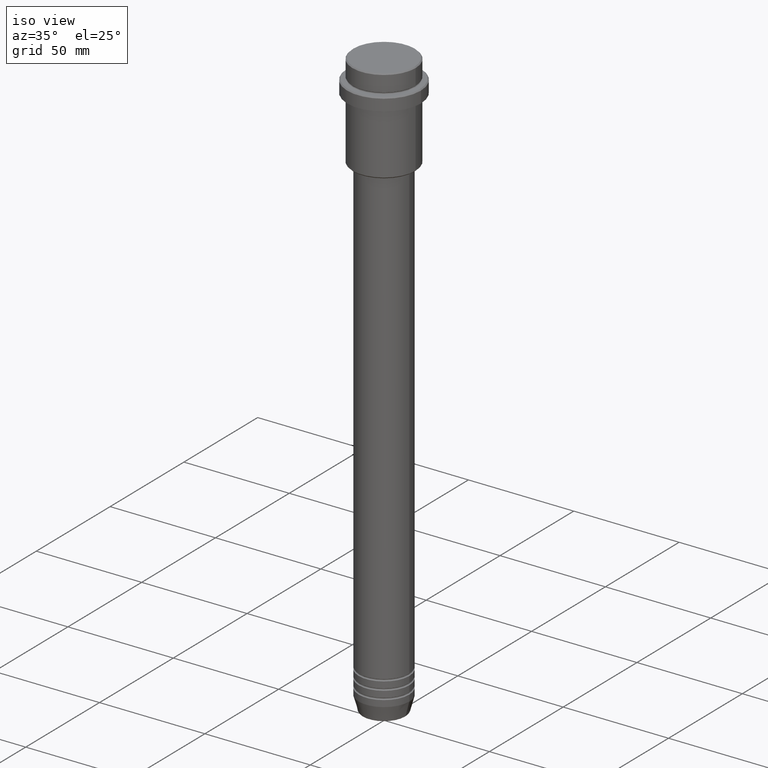
[diagram: clean part render]
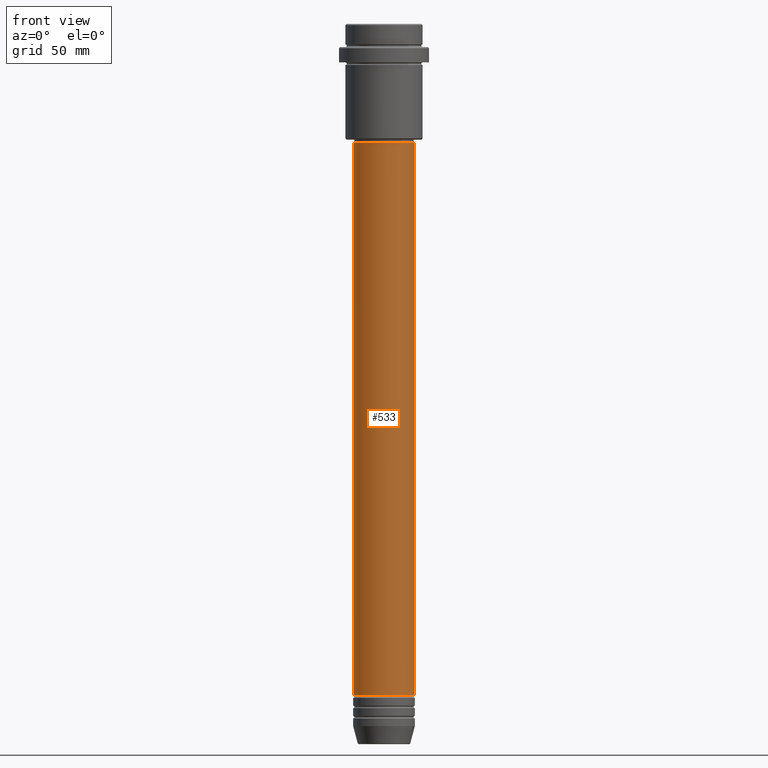
[diagram: tour spotlight — one face highlighted and labeled with its STEP entity id]
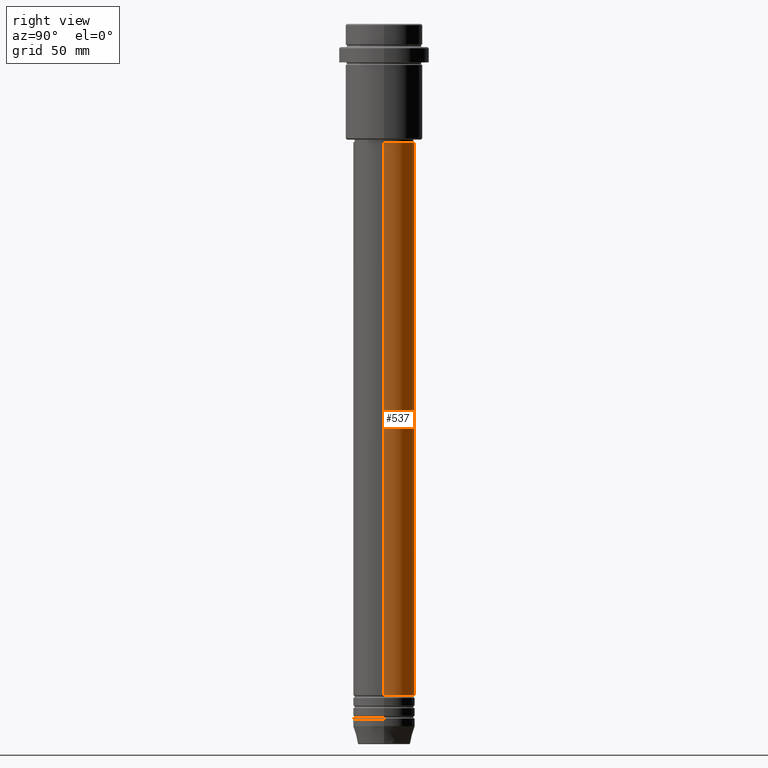
[diagram: tour spotlight — one face highlighted and labeled with its STEP entity id]
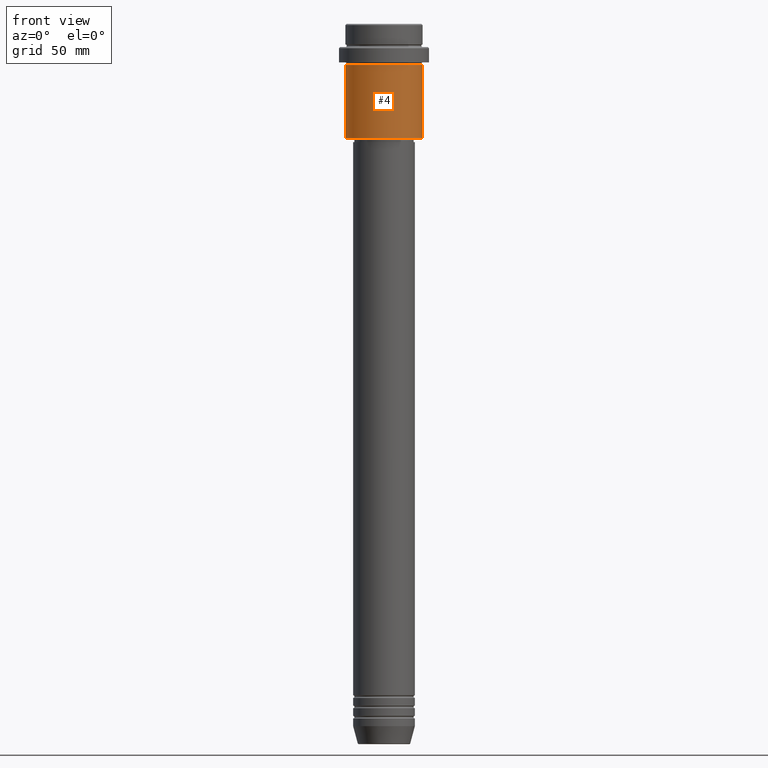
[diagram: tour spotlight — one face highlighted and labeled with its STEP entity id]
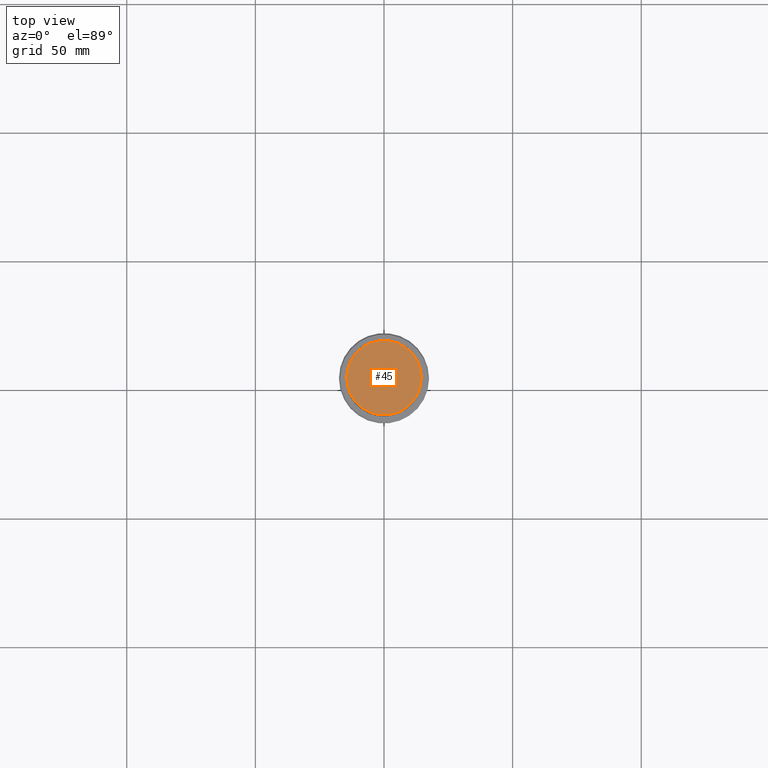
[diagram: tour spotlight — one face highlighted and labeled with its STEP entity id]
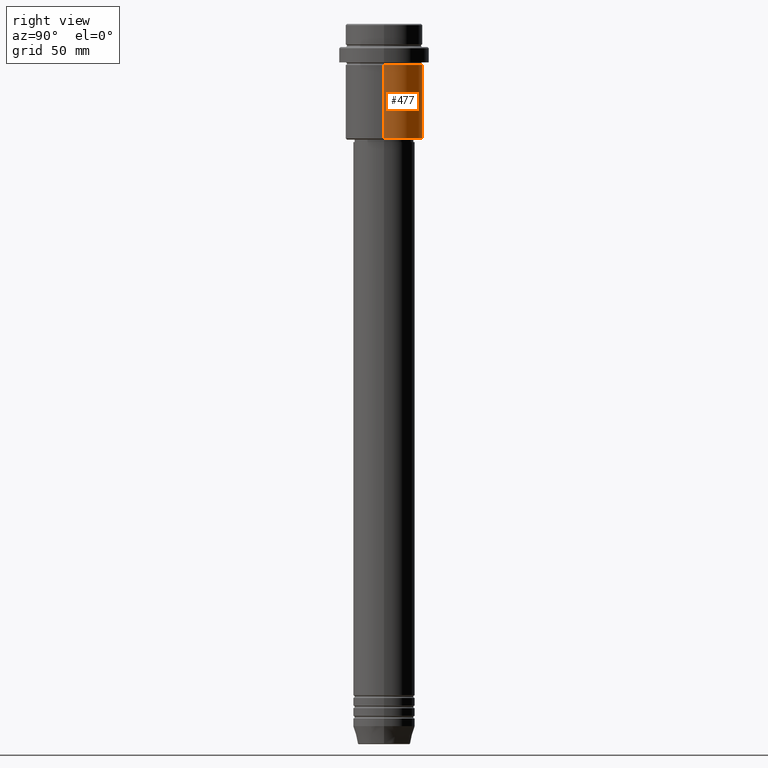
[diagram: tour spotlight — one face highlighted and labeled with its STEP entity id]
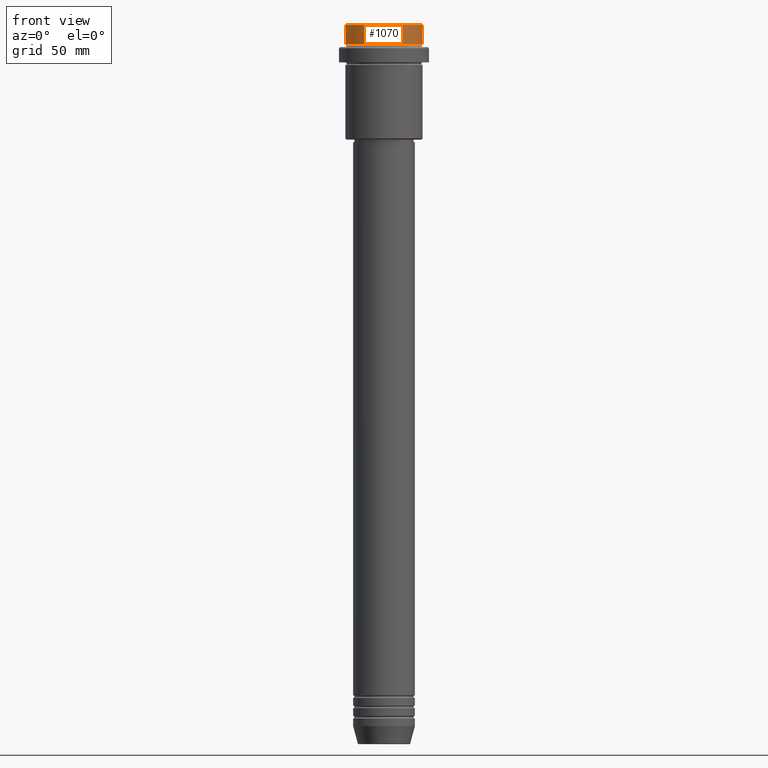
[diagram: tour spotlight — one face highlighted and labeled with its STEP entity id]
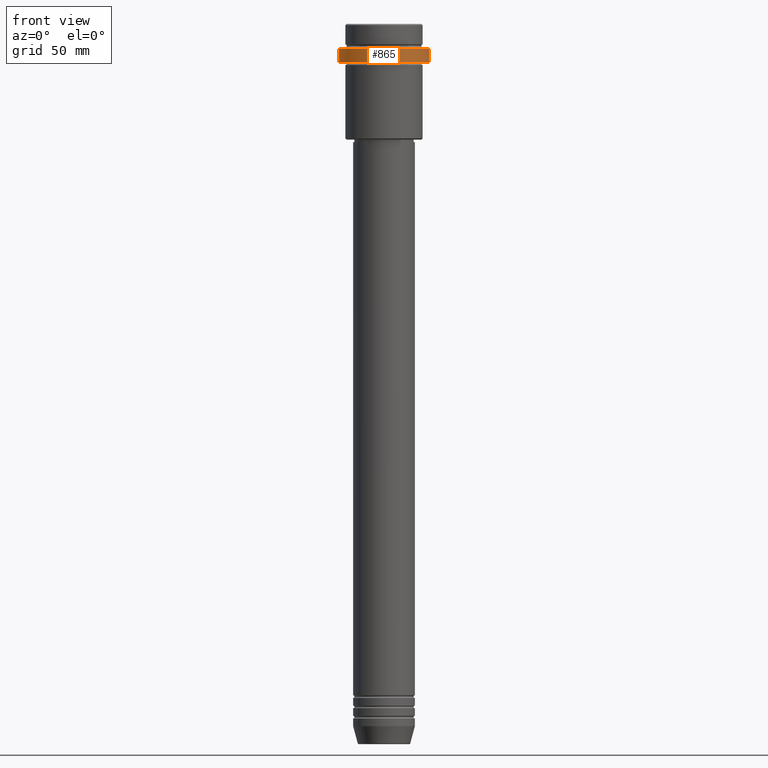
[diagram: tour spotlight — one face highlighted and labeled with its STEP entity id]
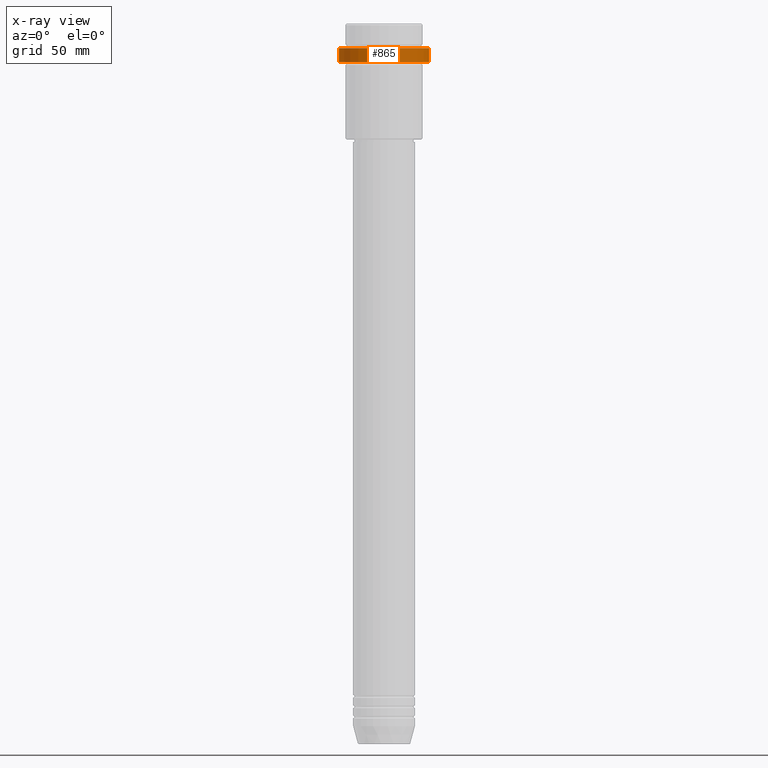
[diagram: x-ray of the same camera — body ghosted, this tour face saturated]
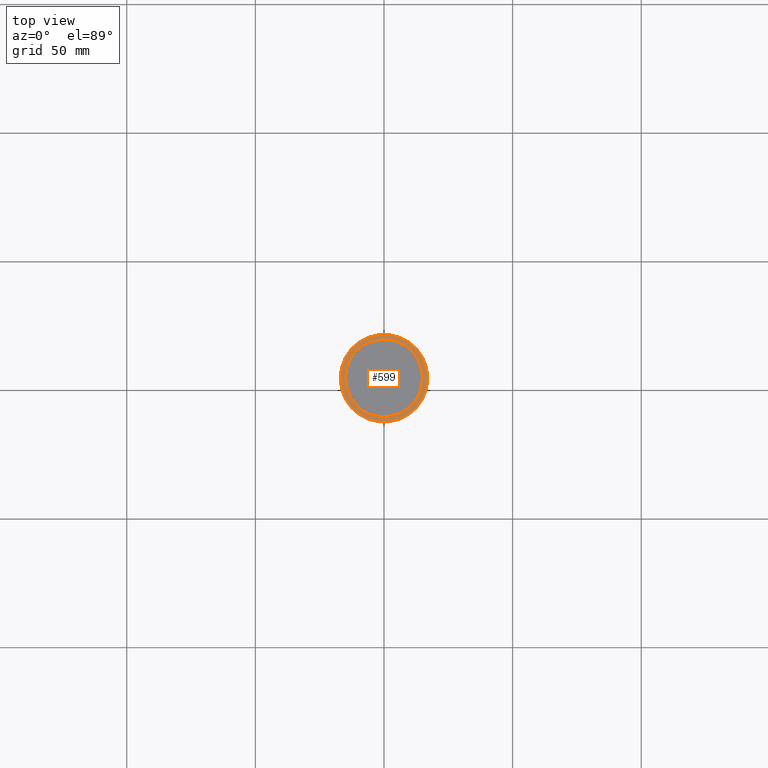
[diagram: tour spotlight — one face highlighted and labeled with its STEP entity id]
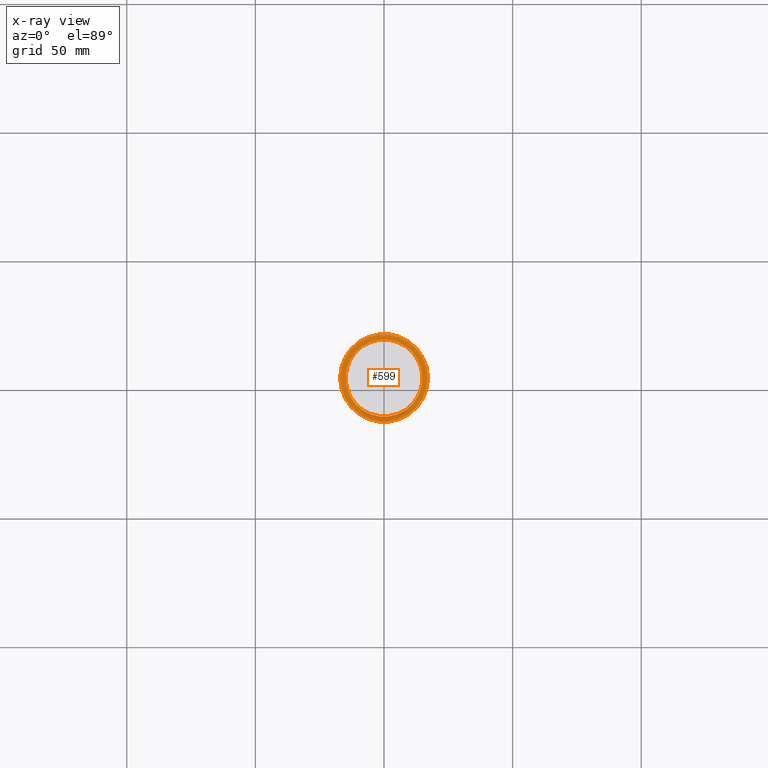
[diagram: x-ray of the same camera — body ghosted, this tour face saturated]
A machine part: a face-by-face anatomy tour. The part has 52 B-rep faces; the first image is the clean iso view, then the 8 largest visible faces are spotlighted one at a time (largest first), each with its STEP entity span.

Face 1 — front view, entity #533. In plain terms, the highlighted cylindrical surface (edge-blend (fillet) strip) has radius 12 mm, axis along (-0, -0, 1).
Definition (entity closure, byte-faithful):
#28 = VERTEX_POINT ( 'NONE', #384 ) ;
#74 = DIRECTION ( 'NONE',  ( -0.000000000000000000, -0.000000000000000000, 1.000000000000000000 ) ) ;
#91 = VERTEX_POINT ( 'NONE', #1356 ) ;
#116 = CARTESIAN_POINT ( 'NONE',  ( 0.000000000000000000, 0.000000000000000000, -46.00000000000002132 ) ) ;
#152 = EDGE_CURVE ( 'NONE', #28, #91, #278, .T. ) ;
#191 = DIRECTION ( 'NONE',  ( -0.000000000000000000, -0.000000000000000000, 1.000000000000000000 ) ) ;
#194 = VECTOR ( 'NONE', #942, 1000.000000000000000 ) ;
#203 = AXIS2_PLACEMENT_3D ( 'NONE', #205, #1413, #1196 ) ;
#205 = CARTESIAN_POINT ( 'NONE',  ( 0.000000000000000000, 0.000000000000000000, -260.9999999999998863 ) ) ;
#278 = LINE ( 'NONE', #394, #194 ) ;
#298 = CARTESIAN_POINT ( 'NONE',  ( 12.00000000000000000, 0.000000000000000000, -260.9999999999998863 ) ) ;
#314 = CIRCLE ( 'NONE', #203, 12.00000000000000000 ) ;
#384 = CARTESIAN_POINT ( 'NONE',  ( -12.00000000000000000, 1.469576158976823947E-15, -260.9999999999998863 ) ) ;
#394 = CARTESIAN_POINT ( 'NONE',  ( -12.00000000000000000, 1.469576158976823947E-15, 0.000000000000000000 ) ) ;
#442 = ORIENTED_EDGE ( 'NONE', *, *, #1053, .T. ) ;
#443 = DIRECTION ( 'NONE',  ( 1.000000000000000000, 0.000000000000000000, 0.000000000000000000 ) ) ;
#451 = AXIS2_PLACEMENT_3D ( 'NONE', #505, #74, #1290 ) ;
#500 = FACE_OUTER_BOUND ( 'NONE', #849, .T. ) ;
#505 = CARTESIAN_POINT ( 'NONE',  ( 0.000000000000000000, 0.000000000000000000, 0.000000000000000000 ) ) ;
#521 = LINE ( 'NONE', #1373, #1088 ) ;
#533 = ADVANCED_FACE ( 'NONE', ( #500 ), #1047, .T. ) ;
#552 = DIRECTION ( 'NONE',  ( -0.000000000000000000, -0.000000000000000000, 1.000000000000000000 ) ) ;
#739 = ORIENTED_EDGE ( 'NONE', *, *, #1165, .F. ) ;
#743 = ORIENTED_EDGE ( 'NONE', *, *, #1343, .T. ) ;
#849 = EDGE_LOOP ( 'NONE', ( #1033, #442, #743, #739 ) ) ;
#942 = DIRECTION ( 'NONE',  ( -0.000000000000000000, -0.000000000000000000, 1.000000000000000000 ) ) ;
#1033 = ORIENTED_EDGE ( 'NONE', *, *, #152, .F. ) ;
#1047 = CYLINDRICAL_SURFACE ( 'NONE', #451, 12.00000000000000000 ) ;
#1053 = EDGE_CURVE ( 'NONE', #28, #1310, #314, .T. ) ;
#1063 = AXIS2_PLACEMENT_3D ( 'NONE', #116, #552, #443 ) ;
#1088 = VECTOR ( 'NONE', #191, 1000.000000000000000 ) ;
#1165 = EDGE_CURVE ( 'NONE', #91, #1349, #1324, .T. ) ;
#1196 = DIRECTION ( 'NONE',  ( 1.000000000000000000, 0.000000000000000000, 0.000000000000000000 ) ) ;
#1290 = DIRECTION ( 'NONE',  ( 1.000000000000000000, 0.000000000000000000, 0.000000000000000000 ) ) ;
#1310 = VERTEX_POINT ( 'NONE', #298 ) ;
#1324 = CIRCLE ( 'NONE', #1063, 11.99999999999999822 ) ;
#1343 = EDGE_CURVE ( 'NONE', #1310, #1349, #521, .T. ) ;
#1349 = VERTEX_POINT ( 'NONE', #1415 ) ;
#1356 = CARTESIAN_POINT ( 'NONE',  ( -11.99999999999999822, 1.469576158976823750E-15, -46.00000000000002132 ) ) ;
#1373 = CARTESIAN_POINT ( 'NONE',  ( 12.00000000000000000, 0.000000000000000000, 0.000000000000000000 ) ) ;
#1413 = DIRECTION ( 'NONE',  ( -0.000000000000000000, -0.000000000000000000, 1.000000000000000000 ) ) ;
#1415 = CARTESIAN_POINT ( 'NONE',  ( 11.99999999999999822, 0.000000000000000000, -46.00000000000002132 ) ) ;

Face 2 — right view, entity #537. In plain terms, the highlighted cylindrical surface (edge-blend (fillet) strip) has radius 12 mm, axis along (-0, -0, 1).
Definition (entity closure, byte-faithful):
#28 = VERTEX_POINT ( 'NONE', #384 ) ;
#86 = EDGE_CURVE ( 'NONE', #1310, #28, #653, .T. ) ;
#89 = CARTESIAN_POINT ( 'NONE',  ( 0.000000000000000000, 0.000000000000000000, 0.000000000000000000 ) ) ;
#91 = VERTEX_POINT ( 'NONE', #1356 ) ;
#143 = ORIENTED_EDGE ( 'NONE', *, *, #152, .T. ) ;
#152 = EDGE_CURVE ( 'NONE', #28, #91, #278, .T. ) ;
#191 = DIRECTION ( 'NONE',  ( -0.000000000000000000, -0.000000000000000000, 1.000000000000000000 ) ) ;
#194 = VECTOR ( 'NONE', #942, 1000.000000000000000 ) ;
#278 = LINE ( 'NONE', #394, #194 ) ;
#298 = CARTESIAN_POINT ( 'NONE',  ( 12.00000000000000000, 0.000000000000000000, -260.9999999999998863 ) ) ;
#299 = ORIENTED_EDGE ( 'NONE', *, *, #1117, .F. ) ;
#384 = CARTESIAN_POINT ( 'NONE',  ( -12.00000000000000000, 1.469576158976823947E-15, -260.9999999999998863 ) ) ;
#394 = CARTESIAN_POINT ( 'NONE',  ( -12.00000000000000000, 1.469576158976823947E-15, 0.000000000000000000 ) ) ;
#422 = CARTESIAN_POINT ( 'NONE',  ( 0.000000000000000000, 0.000000000000000000, -46.00000000000002132 ) ) ;
#437 = ORIENTED_EDGE ( 'NONE', *, *, #86, .T. ) ;
#441 = FACE_OUTER_BOUND ( 'NONE', #1241, .T. ) ;
#455 = ORIENTED_EDGE ( 'NONE', *, *, #1343, .F. ) ;
#521 = LINE ( 'NONE', #1373, #1088 ) ;
#537 = ADVANCED_FACE ( 'NONE', ( #441 ), #1183, .T. ) ;
#622 = DIRECTION ( 'NONE',  ( 1.000000000000000000, 0.000000000000000000, 0.000000000000000000 ) ) ;
#653 = CIRCLE ( 'NONE', #944, 12.00000000000000000 ) ;
#748 = DIRECTION ( 'NONE',  ( 1.000000000000000000, 0.000000000000000000, 0.000000000000000000 ) ) ;
#774 = DIRECTION ( 'NONE',  ( -0.000000000000000000, -0.000000000000000000, 1.000000000000000000 ) ) ;
#776 = CIRCLE ( 'NONE', #1345, 11.99999999999999822 ) ;
#793 = AXIS2_PLACEMENT_3D ( 'NONE', #89, #774, #1207 ) ;
#845 = DIRECTION ( 'NONE',  ( -0.000000000000000000, -0.000000000000000000, 1.000000000000000000 ) ) ;
#942 = DIRECTION ( 'NONE',  ( -0.000000000000000000, -0.000000000000000000, 1.000000000000000000 ) ) ;
#944 = AXIS2_PLACEMENT_3D ( 'NONE', #1380, #1247, #622 ) ;
#1088 = VECTOR ( 'NONE', #191, 1000.000000000000000 ) ;
#1117 = EDGE_CURVE ( 'NONE', #1349, #91, #776, .T. ) ;
#1183 = CYLINDRICAL_SURFACE ( 'NONE', #793, 12.00000000000000000 ) ;
#1207 = DIRECTION ( 'NONE',  ( 1.000000000000000000, 0.000000000000000000, 0.000000000000000000 ) ) ;
#1241 = EDGE_LOOP ( 'NONE', ( #437, #143, #299, #455 ) ) ;
#1247 = DIRECTION ( 'NONE',  ( -0.000000000000000000, -0.000000000000000000, 1.000000000000000000 ) ) ;
#1310 = VERTEX_POINT ( 'NONE', #298 ) ;
#1343 = EDGE_CURVE ( 'NONE', #1310, #1349, #521, .T. ) ;
#1345 = AXIS2_PLACEMENT_3D ( 'NONE', #422, #845, #748 ) ;
#1349 = VERTEX_POINT ( 'NONE', #1415 ) ;
#1356 = CARTESIAN_POINT ( 'NONE',  ( -11.99999999999999822, 1.469576158976823750E-15, -46.00000000000002132 ) ) ;
#1373 = CARTESIAN_POINT ( 'NONE',  ( 12.00000000000000000, 0.000000000000000000, 0.000000000000000000 ) ) ;
#1380 = CARTESIAN_POINT ( 'NONE',  ( 0.000000000000000000, 0.000000000000000000, -260.9999999999998863 ) ) ;
#1415 = CARTESIAN_POINT ( 'NONE',  ( 11.99999999999999822, 0.000000000000000000, -46.00000000000002132 ) ) ;

Face 3 — front view, entity #4. In plain terms, the highlighted cylindrical surface (partial cylindrical patch) has radius 15 mm, axis along (-0, -0, 1).
Definition (entity closure, byte-faithful):
#4 = ADVANCED_FACE ( 'NONE', ( #281 ), #48, .T. ) ;
#20 = DIRECTION ( 'NONE',  ( -0.000000000000000000, -0.000000000000000000, 1.000000000000000000 ) ) ;
#40 = DIRECTION ( 'NONE',  ( -0.000000000000000000, -0.000000000000000000, 1.000000000000000000 ) ) ;
#48 = CYLINDRICAL_SURFACE ( 'NONE', #1172, 15.00000000000000000 ) ;
#53 = VERTEX_POINT ( 'NONE', #370 ) ;
#57 = CIRCLE ( 'NONE', #1366, 15.00000000000000178 ) ;
#258 = LINE ( 'NONE', #699, #495 ) ;
#281 = FACE_OUTER_BOUND ( 'NONE', #1390, .T. ) ;
#347 = EDGE_CURVE ( 'NONE', #53, #439, #57, .T. ) ;
#370 = CARTESIAN_POINT ( 'NONE',  ( -15.00000000000000355, 1.836970198721029983E-15, -16.00000000000000000 ) ) ;
#371 = CARTESIAN_POINT ( 'NONE',  ( 0.000000000000000000, 0.000000000000000000, -16.00000000000000000 ) ) ;
#439 = VERTEX_POINT ( 'NONE', #723 ) ;
#481 = DIRECTION ( 'NONE',  ( -1.000000000000000000, 0.000000000000000000, 0.000000000000000000 ) ) ;
#495 = VECTOR ( 'NONE', #1128, 1000.000000000000000 ) ;
#563 = CARTESIAN_POINT ( 'NONE',  ( 0.000000000000000000, 0.000000000000000000, -44.50000000000003553 ) ) ;
#590 = VECTOR ( 'NONE', #20, 1000.000000000000000 ) ;
#691 = EDGE_CURVE ( 'NONE', #869, #439, #984, .T. ) ;
#699 = CARTESIAN_POINT ( 'NONE',  ( -15.00000000000000000, 1.836970198721029589E-15, 0.000000000000000000 ) ) ;
#707 = EDGE_CURVE ( 'NONE', #1341, #869, #902, .T. ) ;
#713 = ORIENTED_EDGE ( 'NONE', *, *, #809, .F. ) ;
#723 = CARTESIAN_POINT ( 'NONE',  ( 15.00000000000000178, 0.000000000000000000, -16.00000000000000000 ) ) ;
#727 = AXIS2_PLACEMENT_3D ( 'NONE', #563, #40, #481 ) ;
#796 = DIRECTION ( 'NONE',  ( 1.000000000000000000, 0.000000000000000000, 0.000000000000000000 ) ) ;
#809 = EDGE_CURVE ( 'NONE', #1341, #53, #258, .T. ) ;
#869 = VERTEX_POINT ( 'NONE', #938 ) ;
#895 = CARTESIAN_POINT ( 'NONE',  ( 15.00000000000000000, 0.000000000000000000, 0.000000000000000000 ) ) ;
#902 = CIRCLE ( 'NONE', #727, 15.00000000000000000 ) ;
#938 = CARTESIAN_POINT ( 'NONE',  ( 15.00000000000000000, 0.000000000000000000, -44.50000000000003553 ) ) ;
#984 = LINE ( 'NONE', #895, #590 ) ;
#1068 = ORIENTED_EDGE ( 'NONE', *, *, #691, .T. ) ;
#1128 = DIRECTION ( 'NONE',  ( -0.000000000000000000, -0.000000000000000000, 1.000000000000000000 ) ) ;
#1138 = CARTESIAN_POINT ( 'NONE',  ( 0.000000000000000000, 0.000000000000000000, 0.000000000000000000 ) ) ;
#1172 = AXIS2_PLACEMENT_3D ( 'NONE', #1138, #1243, #1259 ) ;
#1224 = DIRECTION ( 'NONE',  ( -0.000000000000000000, -0.000000000000000000, 1.000000000000000000 ) ) ;
#1243 = DIRECTION ( 'NONE',  ( -0.000000000000000000, -0.000000000000000000, 1.000000000000000000 ) ) ;
#1259 = DIRECTION ( 'NONE',  ( 1.000000000000000000, 0.000000000000000000, 0.000000000000000000 ) ) ;
#1281 = CARTESIAN_POINT ( 'NONE',  ( -15.00000000000000000, 1.836970198721029589E-15, -44.50000000000003553 ) ) ;
#1328 = ORIENTED_EDGE ( 'NONE', *, *, #347, .F. ) ;
#1330 = ORIENTED_EDGE ( 'NONE', *, *, #707, .T. ) ;
#1341 = VERTEX_POINT ( 'NONE', #1281 ) ;
#1366 = AXIS2_PLACEMENT_3D ( 'NONE', #371, #1224, #796 ) ;
#1390 = EDGE_LOOP ( 'NONE', ( #713, #1330, #1068, #1328 ) ) ;

Face 4 — top view, entity #45. In plain terms, the highlighted planar face has unit normal (0, -0, 1).
Definition (entity closure, byte-faithful):
#45 = ADVANCED_FACE ( 'NONE', ( #716 ), #601, .T. ) ;
#46 = EDGE_CURVE ( 'NONE', #1147, #821, #98, .T. ) ;
#67 = DIRECTION ( 'NONE',  ( 1.000000000000000000, 0.000000000000000000, 0.000000000000000000 ) ) ;
#98 = CIRCLE ( 'NONE', #878, 14.49999999999992717 ) ;
#254 = DIRECTION ( 'NONE',  ( 0.000000000000000000, -0.000000000000000000, 1.000000000000000000 ) ) ;
#260 = CARTESIAN_POINT ( 'NONE',  ( 0.000000000000000000, 0.000000000000000000, 0.000000000000000000 ) ) ;
#410 = EDGE_CURVE ( 'NONE', #821, #1147, #725, .T. ) ;
#473 = AXIS2_PLACEMENT_3D ( 'NONE', #737, #1376, #841 ) ;
#551 = EDGE_LOOP ( 'NONE', ( #1104, #1306 ) ) ;
#593 = CARTESIAN_POINT ( 'NONE',  ( 14.49999999999992717, 1.806354028742341069E-15, 0.000000000000000000 ) ) ;
#601 = PLANE ( 'NONE',  #1197 ) ;
#716 = FACE_OUTER_BOUND ( 'NONE', #551, .T. ) ;
#725 = CIRCLE ( 'NONE', #473, 14.49999999999992717 ) ;
#737 = CARTESIAN_POINT ( 'NONE',  ( 0.000000000000000000, 0.000000000000000000, 0.000000000000000000 ) ) ;
#821 = VERTEX_POINT ( 'NONE', #593 ) ;
#841 = DIRECTION ( 'NONE',  ( 1.000000000000000000, 0.000000000000000000, 0.000000000000000000 ) ) ;
#878 = AXIS2_PLACEMENT_3D ( 'NONE', #1031, #1353, #1036 ) ;
#1031 = CARTESIAN_POINT ( 'NONE',  ( 0.000000000000000000, 0.000000000000000000, 0.000000000000000000 ) ) ;
#1036 = DIRECTION ( 'NONE',  ( 1.000000000000000000, 0.000000000000000000, 0.000000000000000000 ) ) ;
#1074 = CARTESIAN_POINT ( 'NONE',  ( -14.49999999999992717, 0.000000000000000000, 0.000000000000000000 ) ) ;
#1104 = ORIENTED_EDGE ( 'NONE', *, *, #46, .T. ) ;
#1147 = VERTEX_POINT ( 'NONE', #1074 ) ;
#1197 = AXIS2_PLACEMENT_3D ( 'NONE', #260, #254, #67 ) ;
#1306 = ORIENTED_EDGE ( 'NONE', *, *, #410, .T. ) ;
#1353 = DIRECTION ( 'NONE',  ( -0.000000000000000000, -0.000000000000000000, 1.000000000000000000 ) ) ;
#1376 = DIRECTION ( 'NONE',  ( -0.000000000000000000, -0.000000000000000000, 1.000000000000000000 ) ) ;

Face 5 — right view, entity #477. In plain terms, the highlighted cylindrical surface (partial cylindrical patch) has radius 15 mm, axis along (-0, -0, 1).
Definition (entity closure, byte-faithful):
#19 = CIRCLE ( 'NONE', #1130, 15.00000000000000000 ) ;
#20 = DIRECTION ( 'NONE',  ( -0.000000000000000000, -0.000000000000000000, 1.000000000000000000 ) ) ;
#26 = DIRECTION ( 'NONE',  ( -0.000000000000000000, -0.000000000000000000, 1.000000000000000000 ) ) ;
#53 = VERTEX_POINT ( 'NONE', #370 ) ;
#151 = ORIENTED_EDGE ( 'NONE', *, *, #999, .F. ) ;
#244 = AXIS2_PLACEMENT_3D ( 'NONE', #1357, #374, #812 ) ;
#258 = LINE ( 'NONE', #699, #495 ) ;
#282 = DIRECTION ( 'NONE',  ( 1.000000000000000000, 0.000000000000000000, 0.000000000000000000 ) ) ;
#305 = ORIENTED_EDGE ( 'NONE', *, *, #703, .T. ) ;
#340 = CIRCLE ( 'NONE', #244, 15.00000000000000178 ) ;
#348 = CARTESIAN_POINT ( 'NONE',  ( 0.000000000000000000, 0.000000000000000000, -44.50000000000003553 ) ) ;
#370 = CARTESIAN_POINT ( 'NONE',  ( -15.00000000000000355, 1.836970198721029983E-15, -16.00000000000000000 ) ) ;
#374 = DIRECTION ( 'NONE',  ( -0.000000000000000000, -0.000000000000000000, 1.000000000000000000 ) ) ;
#412 = CARTESIAN_POINT ( 'NONE',  ( 0.000000000000000000, 0.000000000000000000, 0.000000000000000000 ) ) ;
#439 = VERTEX_POINT ( 'NONE', #723 ) ;
#463 = DIRECTION ( 'NONE',  ( -1.000000000000000000, 0.000000000000000000, 0.000000000000000000 ) ) ;
#477 = ADVANCED_FACE ( 'NONE', ( #834 ), #519, .T. ) ;
#495 = VECTOR ( 'NONE', #1128, 1000.000000000000000 ) ;
#519 = CYLINDRICAL_SURFACE ( 'NONE', #1017, 15.00000000000000000 ) ;
#590 = VECTOR ( 'NONE', #20, 1000.000000000000000 ) ;
#607 = ORIENTED_EDGE ( 'NONE', *, *, #809, .T. ) ;
#691 = EDGE_CURVE ( 'NONE', #869, #439, #984, .T. ) ;
#699 = CARTESIAN_POINT ( 'NONE',  ( -15.00000000000000000, 1.836970198721029589E-15, 0.000000000000000000 ) ) ;
#703 = EDGE_CURVE ( 'NONE', #869, #1341, #19, .T. ) ;
#723 = CARTESIAN_POINT ( 'NONE',  ( 15.00000000000000178, 0.000000000000000000, -16.00000000000000000 ) ) ;
#809 = EDGE_CURVE ( 'NONE', #1341, #53, #258, .T. ) ;
#812 = DIRECTION ( 'NONE',  ( 1.000000000000000000, 0.000000000000000000, 0.000000000000000000 ) ) ;
#834 = FACE_OUTER_BOUND ( 'NONE', #1005, .T. ) ;
#869 = VERTEX_POINT ( 'NONE', #938 ) ;
#895 = CARTESIAN_POINT ( 'NONE',  ( 15.00000000000000000, 0.000000000000000000, 0.000000000000000000 ) ) ;
#938 = CARTESIAN_POINT ( 'NONE',  ( 15.00000000000000000, 0.000000000000000000, -44.50000000000003553 ) ) ;
#984 = LINE ( 'NONE', #895, #590 ) ;
#999 = EDGE_CURVE ( 'NONE', #439, #53, #340, .T. ) ;
#1005 = EDGE_LOOP ( 'NONE', ( #305, #607, #151, #1292 ) ) ;
#1017 = AXIS2_PLACEMENT_3D ( 'NONE', #412, #1273, #282 ) ;
#1128 = DIRECTION ( 'NONE',  ( -0.000000000000000000, -0.000000000000000000, 1.000000000000000000 ) ) ;
#1130 = AXIS2_PLACEMENT_3D ( 'NONE', #348, #26, #463 ) ;
#1273 = DIRECTION ( 'NONE',  ( -0.000000000000000000, -0.000000000000000000, 1.000000000000000000 ) ) ;
#1281 = CARTESIAN_POINT ( 'NONE',  ( -15.00000000000000000, 1.836970198721029589E-15, -44.50000000000003553 ) ) ;
#1292 = ORIENTED_EDGE ( 'NONE', *, *, #691, .F. ) ;
#1341 = VERTEX_POINT ( 'NONE', #1281 ) ;
#1357 = CARTESIAN_POINT ( 'NONE',  ( 0.000000000000000000, 0.000000000000000000, -16.00000000000000000 ) ) ;

Face 6 — front view, entity #1070. In plain terms, the highlighted cylindrical surface (partial cylindrical patch) has radius 15 mm, axis along (-0, -0, 1).
Definition (entity closure, byte-faithful):
#22 = EDGE_CURVE ( 'NONE', #1261, #117, #1150, .T. ) ;
#29 = DIRECTION ( 'NONE',  ( 0.000000000000000000, 0.000000000000000000, -1.000000000000000000 ) ) ;
#100 = CARTESIAN_POINT ( 'NONE',  ( 0.000000000000000000, 0.000000000000000000, 0.000000000000000000 ) ) ;
#117 = VERTEX_POINT ( 'NONE', #825 ) ;
#178 = DIRECTION ( 'NONE',  ( -0.000000000000000000, -0.000000000000000000, 1.000000000000000000 ) ) ;
#199 = CARTESIAN_POINT ( 'NONE',  ( 15.00000000000000000, 0.000000000000000000, -7.999999999999998224 ) ) ;
#210 = DIRECTION ( 'NONE',  ( -0.000000000000000000, -0.000000000000000000, 1.000000000000000000 ) ) ;
#325 = EDGE_CURVE ( 'NONE', #117, #1161, #424, .T. ) ;
#357 = DIRECTION ( 'NONE',  ( 1.000000000000000000, 0.000000000000000000, 0.000000000000000000 ) ) ;
#361 = AXIS2_PLACEMENT_3D ( 'NONE', #840, #1050, #1263 ) ;
#420 = CARTESIAN_POINT ( 'NONE',  ( -15.00000000000000000, 1.836970198721029589E-15, 0.000000000000000000 ) ) ;
#424 = CIRCLE ( 'NONE', #1387, 15.00000000000000000 ) ;
#472 = CARTESIAN_POINT ( 'NONE',  ( 0.000000000000000000, 0.000000000000000000, -0.5000000000000663913 ) ) ;
#492 = VERTEX_POINT ( 'NONE', #732 ) ;
#562 = VECTOR ( 'NONE', #178, 1000.000000000000000 ) ;
#571 = AXIS2_PLACEMENT_3D ( 'NONE', #100, #210, #665 ) ;
#589 = ORIENTED_EDGE ( 'NONE', *, *, #22, .T. ) ;
#652 = CARTESIAN_POINT ( 'NONE',  ( -15.00000000000000000, 1.836970198721029589E-15, -0.5000000000000663913 ) ) ;
#665 = DIRECTION ( 'NONE',  ( 1.000000000000000000, 0.000000000000000000, 0.000000000000000000 ) ) ;
#698 = ORIENTED_EDGE ( 'NONE', *, *, #325, .T. ) ;
#732 = CARTESIAN_POINT ( 'NONE',  ( -15.00000000000000000, 1.836970198721029589E-15, -7.999999999999998224 ) ) ;
#757 = FACE_OUTER_BOUND ( 'NONE', #1140, .T. ) ;
#804 = ORIENTED_EDGE ( 'NONE', *, *, #1227, .F. ) ;
#825 = CARTESIAN_POINT ( 'NONE',  ( 15.00000000000000000, 0.000000000000000000, -0.5000000000000663913 ) ) ;
#840 = CARTESIAN_POINT ( 'NONE',  ( 0.000000000000000000, 0.000000000000000000, -7.999999999999998224 ) ) ;
#870 = LINE ( 'NONE', #420, #1372 ) ;
#873 = CYLINDRICAL_SURFACE ( 'NONE', #571, 15.00000000000000000 ) ;
#913 = EDGE_CURVE ( 'NONE', #492, #1261, #973, .T. ) ;
#973 = CIRCLE ( 'NONE', #361, 15.00000000000000000 ) ;
#1050 = DIRECTION ( 'NONE',  ( -0.000000000000000000, -0.000000000000000000, 1.000000000000000000 ) ) ;
#1070 = ADVANCED_FACE ( 'NONE', ( #757 ), #873, .T. ) ;
#1140 = EDGE_LOOP ( 'NONE', ( #804, #1245, #589, #698 ) ) ;
#1150 = LINE ( 'NONE', #1368, #562 ) ;
#1161 = VERTEX_POINT ( 'NONE', #652 ) ;
#1227 = EDGE_CURVE ( 'NONE', #492, #1161, #870, .T. ) ;
#1245 = ORIENTED_EDGE ( 'NONE', *, *, #913, .T. ) ;
#1261 = VERTEX_POINT ( 'NONE', #199 ) ;
#1263 = DIRECTION ( 'NONE',  ( 1.000000000000000000, 0.000000000000000000, 0.000000000000000000 ) ) ;
#1368 = CARTESIAN_POINT ( 'NONE',  ( 15.00000000000000000, 0.000000000000000000, 0.000000000000000000 ) ) ;
#1372 = VECTOR ( 'NONE', #1408, 1000.000000000000000 ) ;
#1387 = AXIS2_PLACEMENT_3D ( 'NONE', #472, #29, #357 ) ;
#1408 = DIRECTION ( 'NONE',  ( -0.000000000000000000, -0.000000000000000000, 1.000000000000000000 ) ) ;

Face 7 — front view, entity #865. An x-ray twin of the same camera follows (body ghosted, this face saturated) — the face is partly hidden behind the body. In plain terms, the highlighted cylindrical surface (partial cylindrical patch) has radius 17.5 mm, axis along (-0, -0, 1).
Definition (entity closure, byte-faithful):
#16 = CARTESIAN_POINT ( 'NONE',  ( 17.50000000000000000, 0.000000000000000000, -15.00000000000000178 ) ) ;
#56 = DIRECTION ( 'NONE',  ( -0.000000000000000000, -0.000000000000000000, 1.000000000000000000 ) ) ;
#62 = CIRCLE ( 'NONE', #860, 17.50000000000000000 ) ;
#80 = CARTESIAN_POINT ( 'NONE',  ( -17.50000000000000000, 2.143131898507868248E-15, -15.00000000000000178 ) ) ;
#133 = AXIS2_PLACEMENT_3D ( 'NONE', #1035, #56, #616 ) ;
#135 = VECTOR ( 'NONE', #864, 1000.000000000000000 ) ;
#149 = LINE ( 'NONE', #1340, #220 ) ;
#182 = ORIENTED_EDGE ( 'NONE', *, *, #850, .T. ) ;
#207 = ORIENTED_EDGE ( 'NONE', *, *, #1238, .T. ) ;
#217 = CARTESIAN_POINT ( 'NONE',  ( -17.50000000000000000, 2.143131898507868248E-15, -9.499999999999973355 ) ) ;
#220 = VECTOR ( 'NONE', #461, 1000.000000000000000 ) ;
#300 = EDGE_CURVE ( 'NONE', #1304, #1073, #149, .T. ) ;
#430 = CARTESIAN_POINT ( 'NONE',  ( 17.50000000000000000, 0.000000000000000000, 0.000000000000000000 ) ) ;
#461 = DIRECTION ( 'NONE',  ( -0.000000000000000000, -0.000000000000000000, 1.000000000000000000 ) ) ;
#504 = ORIENTED_EDGE ( 'NONE', *, *, #1081, .T. ) ;
#536 = LINE ( 'NONE', #430, #135 ) ;
#548 = CARTESIAN_POINT ( 'NONE',  ( 0.000000000000000000, 0.000000000000000000, -9.499999999999973355 ) ) ;
#606 = FACE_OUTER_BOUND ( 'NONE', #905, .T. ) ;
#616 = DIRECTION ( 'NONE',  ( 1.000000000000000000, 0.000000000000000000, 0.000000000000000000 ) ) ;
#685 = AXIS2_PLACEMENT_3D ( 'NONE', #995, #921, #943 ) ;
#718 = ORIENTED_EDGE ( 'NONE', *, *, #300, .F. ) ;
#850 = EDGE_CURVE ( 'NONE', #1304, #1193, #881, .T. ) ;
#860 = AXIS2_PLACEMENT_3D ( 'NONE', #548, #1069, #866 ) ;
#864 = DIRECTION ( 'NONE',  ( -0.000000000000000000, -0.000000000000000000, 1.000000000000000000 ) ) ;
#865 = ADVANCED_FACE ( 'NONE', ( #606 ), #1365, .T. ) ;
#866 = DIRECTION ( 'NONE',  ( 1.000000000000000000, 0.000000000000000000, 0.000000000000000000 ) ) ;
#881 = CIRCLE ( 'NONE', #685, 17.50000000000000000 ) ;
#905 = EDGE_LOOP ( 'NONE', ( #718, #182, #207, #504 ) ) ;
#921 = DIRECTION ( 'NONE',  ( -0.000000000000000000, -0.000000000000000000, 1.000000000000000000 ) ) ;
#943 = DIRECTION ( 'NONE',  ( 1.000000000000000000, 0.000000000000000000, 0.000000000000000000 ) ) ;
#988 = VERTEX_POINT ( 'NONE', #1056 ) ;
#995 = CARTESIAN_POINT ( 'NONE',  ( 0.000000000000000000, 0.000000000000000000, -15.00000000000000178 ) ) ;
#1035 = CARTESIAN_POINT ( 'NONE',  ( 0.000000000000000000, 0.000000000000000000, 0.000000000000000000 ) ) ;
#1056 = CARTESIAN_POINT ( 'NONE',  ( 17.50000000000000000, 0.000000000000000000, -9.499999999999973355 ) ) ;
#1069 = DIRECTION ( 'NONE',  ( 0.000000000000000000, 0.000000000000000000, -1.000000000000000000 ) ) ;
#1073 = VERTEX_POINT ( 'NONE', #217 ) ;
#1081 = EDGE_CURVE ( 'NONE', #988, #1073, #62, .T. ) ;
#1193 = VERTEX_POINT ( 'NONE', #16 ) ;
#1238 = EDGE_CURVE ( 'NONE', #1193, #988, #536, .T. ) ;
#1304 = VERTEX_POINT ( 'NONE', #80 ) ;
#1340 = CARTESIAN_POINT ( 'NONE',  ( -17.50000000000000000, 2.143131898507868248E-15, 0.000000000000000000 ) ) ;
#1365 = CYLINDRICAL_SURFACE ( 'NONE', #133, 17.50000000000000000 ) ;

Face 8 — top view, entity #599. An x-ray twin of the same camera follows (body ghosted, this face saturated) — the face is partly hidden behind the body. In plain terms, the highlighted planar face has unit normal (0, -0, 1).
Definition (entity closure, byte-faithful):
#25 = VERTEX_POINT ( 'NONE', #618 ) ;
#63 = ORIENTED_EDGE ( 'NONE', *, *, #955, .T. ) ;
#66 = CARTESIAN_POINT ( 'NONE',  ( 0.000000000000000000, 0.000000000000000000, -9.000000000000001776 ) ) ;
#93 = DIRECTION ( 'NONE',  ( 0.000000000000000000, -0.000000000000000000, 1.000000000000000000 ) ) ;
#108 = VERTEX_POINT ( 'NONE', #185 ) ;
#109 = AXIS2_PLACEMENT_3D ( 'NONE', #1248, #267, #771 ) ;
#119 = PLANE ( 'NONE',  #285 ) ;
#185 = CARTESIAN_POINT ( 'NONE',  ( 17.00000000000001421, 2.112515728529185250E-15, -9.000000000000001776 ) ) ;
#233 = EDGE_LOOP ( 'NONE', ( #283, #63 ) ) ;
#266 = CIRCLE ( 'NONE', #109, 17.00000000000001421 ) ;
#267 = DIRECTION ( 'NONE',  ( -0.000000000000000000, -0.000000000000000000, 1.000000000000000000 ) ) ;
#283 = ORIENTED_EDGE ( 'NONE', *, *, #1083, .T. ) ;
#285 = AXIS2_PLACEMENT_3D ( 'NONE', #557, #93, #1398 ) ;
#356 = VERTEX_POINT ( 'NONE', #483 ) ;
#427 = AXIS2_PLACEMENT_3D ( 'NONE', #1077, #1089, #549 ) ;
#471 = ORIENTED_EDGE ( 'NONE', *, *, #1011, .T. ) ;
#483 = CARTESIAN_POINT ( 'NONE',  ( -14.99999999999999467, 1.836970198721029194E-15, -9.000000000000001776 ) ) ;
#524 = CARTESIAN_POINT ( 'NONE',  ( 0.000000000000000000, 0.000000000000000000, -9.000000000000001776 ) ) ;
#549 = DIRECTION ( 'NONE',  ( 1.000000000000000000, 0.000000000000000000, 0.000000000000000000 ) ) ;
#557 = CARTESIAN_POINT ( 'NONE',  ( 0.000000000000000000, 14.49999999999999467, -9.000000000000001776 ) ) ;
#599 = ADVANCED_FACE ( 'NONE', ( #1173, #1302 ), #119, .T. ) ;
#600 = DIRECTION ( 'NONE',  ( 1.000000000000000000, 0.000000000000000000, 0.000000000000000000 ) ) ;
#618 = CARTESIAN_POINT ( 'NONE',  ( 14.99999999999999467, 0.000000000000000000, -9.000000000000001776 ) ) ;
#623 = DIRECTION ( 'NONE',  ( 0.000000000000000000, 0.000000000000000000, -1.000000000000000000 ) ) ;
#679 = EDGE_CURVE ( 'NONE', #108, #692, #950, .T. ) ;
#692 = VERTEX_POINT ( 'NONE', #1003 ) ;
#771 = DIRECTION ( 'NONE',  ( 1.000000000000000000, 0.000000000000000000, 0.000000000000000000 ) ) ;
#827 = EDGE_LOOP ( 'NONE', ( #471, #1185 ) ) ;
#904 = CIRCLE ( 'NONE', #1155, 14.99999999999999467 ) ;
#950 = CIRCLE ( 'NONE', #427, 17.00000000000001421 ) ;
#955 = EDGE_CURVE ( 'NONE', #356, #25, #904, .T. ) ;
#1003 = CARTESIAN_POINT ( 'NONE',  ( -17.00000000000001421, 0.000000000000000000, -9.000000000000001776 ) ) ;
#1011 = EDGE_CURVE ( 'NONE', #692, #108, #266, .T. ) ;
#1021 = AXIS2_PLACEMENT_3D ( 'NONE', #524, #1094, #1397 ) ;
#1077 = CARTESIAN_POINT ( 'NONE',  ( 0.000000000000000000, 0.000000000000000000, -9.000000000000001776 ) ) ;
#1083 = EDGE_CURVE ( 'NONE', #25, #356, #1087, .T. ) ;
#1087 = CIRCLE ( 'NONE', #1021, 14.99999999999999467 ) ;
#1089 = DIRECTION ( 'NONE',  ( -0.000000000000000000, -0.000000000000000000, 1.000000000000000000 ) ) ;
#1094 = DIRECTION ( 'NONE',  ( 0.000000000000000000, 0.000000000000000000, -1.000000000000000000 ) ) ;
#1155 = AXIS2_PLACEMENT_3D ( 'NONE', #66, #623, #600 ) ;
#1173 = FACE_OUTER_BOUND ( 'NONE', #827, .T. ) ;
#1185 = ORIENTED_EDGE ( 'NONE', *, *, #679, .T. ) ;
#1248 = CARTESIAN_POINT ( 'NONE',  ( 0.000000000000000000, 0.000000000000000000, -9.000000000000001776 ) ) ;
#1302 = FACE_BOUND ( 'NONE', #233, .T. ) ;
#1397 = DIRECTION ( 'NONE',  ( 1.000000000000000000, 0.000000000000000000, 0.000000000000000000 ) ) ;
#1398 = DIRECTION ( 'NONE',  ( 1.000000000000000000, 0.000000000000000000, 0.000000000000000000 ) ) ;